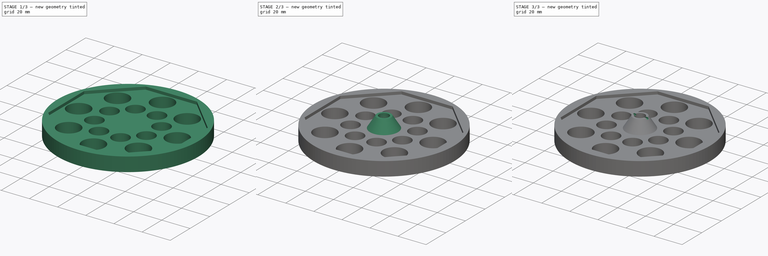
[diagram: build sequence overview — one tinted view per stage of 3, left to right]
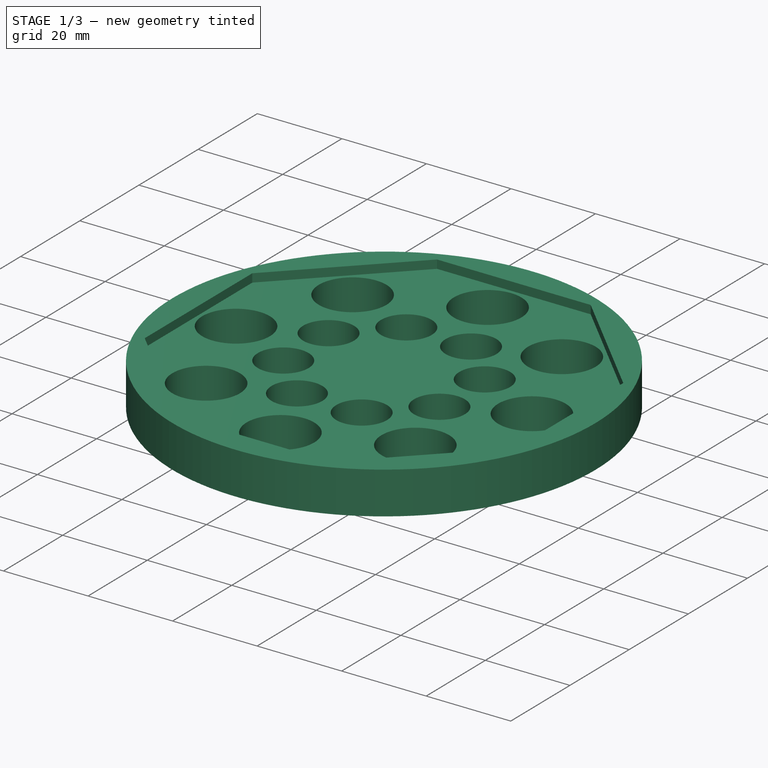
[diagram: stage 1 of 3 — iso view after this stage's code; geometry added in this stage tinted green]
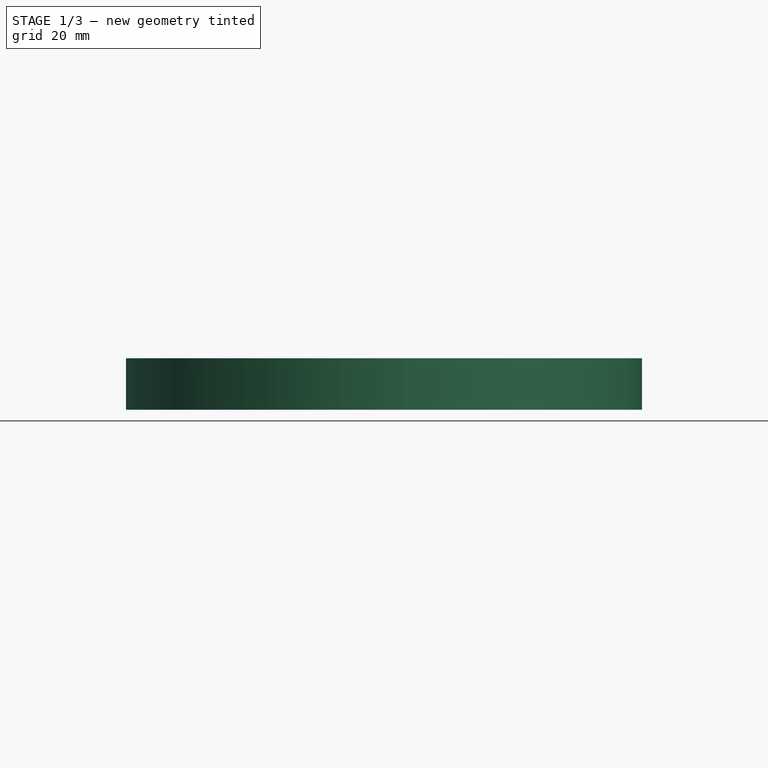
[diagram: stage 1 of 3 — front view after this stage's code; geometry added in this stage tinted green]
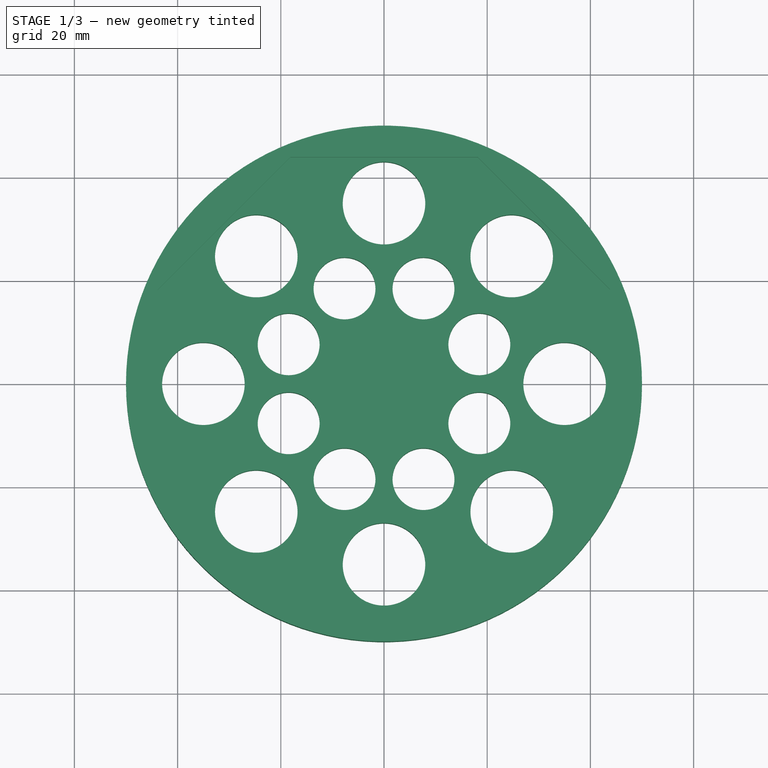
[diagram: stage 1 of 3 — top view after this stage's code; geometry added in this stage tinted green]
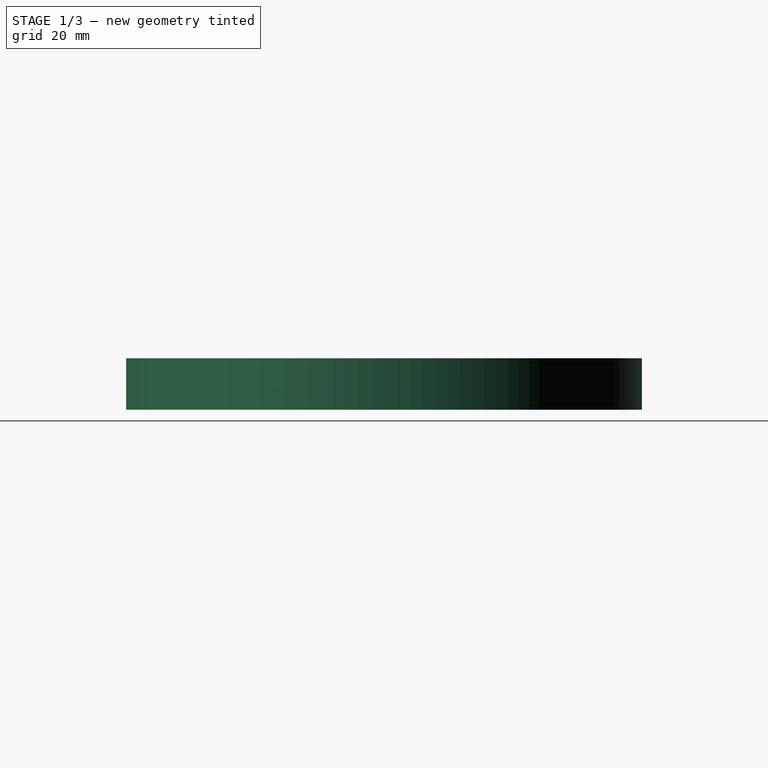
[diagram: stage 1 of 3 — right view after this stage's code; geometry added in this stage tinted green]
FCSTD DOCUMENT  (FreeCAD 0.19R24366 (Git))
Label: arkTach_v1_4
License: All rights reserved
LicenseURL: http://en.wikipedia.org/wiki/All_rights_reserved
objects: Sketcher::SketchObject×3, PartDesign::Pocket×2, PartDesign::Pad×1, PartDesign::AdditiveCone×1, PartDesign::SubtractiveCylinder×1, PartDesign::SubtractiveBox×1, PartDesign::Body×1, Part::Part2DObjectPython×1
note: 17 computed .brp shape members not serialized (recipe doc carries the construction recipe); baked Part::Feature solids carry a one-line shape summary decoded from their .brp

FEATURE [Sketcher::SketchObject] Sketch
  FullyConstrained = true
  MapMode = 5
  Support = -> [XY_Plane]
  sketch-geometry (35):
    g0: Circle CenterX=0 CenterY=0 CenterZ=0 NormalX=0 NormalY=0 NormalZ=1 AngleXU=0 Radius=50
    g1: LineSegment StartX=35 StartY=0 StartZ=0 EndX=24.7487 EndY=24.7487 EndZ=0
    g2: LineSegment StartX=24.7487 StartY=24.7487 StartZ=0 EndX=0 EndY=35 EndZ=0
    g3: LineSegment StartX=0 StartY=35 StartZ=0 EndX=-24.7487 EndY=24.7487 EndZ=0
    g4: LineSegment StartX=-24.7487 StartY=24.7487 StartZ=0 EndX=-35 EndY=0 EndZ=0
    g5: LineSegment StartX=-35 StartY=0 StartZ=0 EndX=-24.7487 EndY=-24.7487 EndZ=0
    g6: LineSegment StartX=-24.7487 StartY=-24.7487 StartZ=0 EndX=3.6e-15 EndY=-35 EndZ=0
    g7: LineSegment StartX=3.6e-15 StartY=-35 StartZ=0 EndX=24.7487 EndY=-24.7487 EndZ=0
    g8: LineSegment StartX=24.7487 StartY=-24.7487 StartZ=0 EndX=35 EndY=0 EndZ=0
    g9: Circle CenterX=0 CenterY=0 CenterZ=0 NormalX=0 NormalY=0 NormalZ=1 AngleXU=0 Radius=35
    g10: Circle CenterX=0 CenterY=35 CenterZ=0 NormalX=0 NormalY=0 NormalZ=1 AngleXU=0 Radius=8
    g11: Circle CenterX=24.7487 CenterY=24.7487 CenterZ=0 NormalX=0 NormalY=0 NormalZ=1 AngleXU=0 Radius=8
    g12: Circle CenterX=35 CenterY=0 CenterZ=0 NormalX=0 NormalY=0 NormalZ=1 AngleXU=0 Radius=8
    g13: Circle CenterX=24.7487 CenterY=-24.7487 CenterZ=0 NormalX=0 NormalY=0 NormalZ=1 AngleXU=0 Radius=8
    g14: Circle CenterX=3.6e-15 CenterY=-35 CenterZ=0 NormalX=0 NormalY=0 NormalZ=1 AngleXU=0 Radius=8
    g15: Circle CenterX=-24.7487 CenterY=-24.7487 CenterZ=0 NormalX=0 NormalY=0 NormalZ=1 AngleXU=0 Radius=8
    g16: Circle CenterX=-35 CenterY=0 CenterZ=0 NormalX=0 NormalY=0 NormalZ=1 AngleXU=0 Radius=8
    g17: Circle CenterX=-24.7487 CenterY=24.7487 CenterZ=0 NormalX=0 NormalY=0 NormalZ=1 AngleXU=0 Radius=8
    g18: LineSegment StartX=7.65367 StartY=-18.4776 StartZ=0 EndX=18.4776 EndY=-7.65367 EndZ=0
    g19: LineSegment StartX=18.4776 StartY=-7.65367 StartZ=0 EndX=18.4776 EndY=7.65367 EndZ=0
    g20: LineSegment StartX=18.4776 StartY=7.65367 StartZ=0 EndX=7.65367 EndY=18.4776 EndZ=0
    g21: LineSegment StartX=7.65367 StartY=18.4776 StartZ=0 EndX=-7.65367 EndY=18.4776 EndZ=0
    g22: LineSegment StartX=-7.65367 StartY=18.4776 StartZ=0 EndX=-18.4776 EndY=7.65367 EndZ=0
    g23: LineSegment StartX=-18.4776 StartY=7.65367 StartZ=0 EndX=-18.4776 EndY=-7.65367 EndZ=0
    g24: LineSegment StartX=-18.4776 StartY=-7.65367 StartZ=0 EndX=-7.65367 EndY=-18.4776 EndZ=0
    g25: LineSegment StartX=-7.65367 StartY=-18.4776 StartZ=0 EndX=7.65367 EndY=-18.4776 EndZ=0
    g26: Circle CenterX=0 CenterY=0 CenterZ=0 NormalX=0 NormalY=0 NormalZ=1 AngleXU=0 Radius=20
    g27: Circle CenterX=-7.65367 CenterY=-18.4776 CenterZ=0 NormalX=0 NormalY=0 NormalZ=1 AngleXU=0 Radius=6
    g28: Circle CenterX=7.65367 CenterY=-18.4776 CenterZ=0 NormalX=0 NormalY=0 NormalZ=1 AngleXU=0 Radius=6
    g29: Circle CenterX=18.4776 CenterY=-7.65367 CenterZ=0 NormalX=0 NormalY=0 NormalZ=1 AngleXU=0 Radius=6
    g30: Circle CenterX=18.4776 CenterY=7.65367 CenterZ=0 NormalX=0 NormalY=0 NormalZ=1 AngleXU=0 Radius=6
    g31: Circle CenterX=7.65367 CenterY=18.4776 CenterZ=0 NormalX=0 NormalY=0 NormalZ=1 AngleXU=0 Radius=6
    g32: Circle CenterX=-7.65367 CenterY=18.4776 CenterZ=0 NormalX=0 NormalY=0 NormalZ=1 AngleXU=0 Radius=6
    g33: Circle CenterX=-18.4776 CenterY=7.65367 CenterZ=0 NormalX=0 NormalY=0 NormalZ=1 AngleXU=0 Radius=6
    g34: Circle CenterX=-18.4776 CenterY=-7.65367 CenterZ=0 NormalX=0 NormalY=0 NormalZ=1 AngleXU=0 Radius=6
  constraints (66):
    c: Coincident(g0,g-1)
    c: Radius(g0) = 50
    c: Coincident(g1,g2)
    c: Coincident(g2,g3)
    c: Coincident(g3,g4)
    c: Coincident(g4,g5)
    c: Coincident(g5,g6)
    c: Coincident(g6,g7)
    c: Coincident(g7,g8)
    c: Coincident(g8,g1)
    c: Equal(g1, g2-g8) x7
    c: PointOnObject(g1,g9)
    c: PointOnObject(g2,g9)
    c: PointOnObject(g3,g9)
    c: PointOnObject(g4,g9)
    c: PointOnObject(g5,g9)
    c: PointOnObject(g6,g9)
    c: PointOnObject(g7,g9)
    c: PointOnObject(g8,g9)
    c: Coincident(g9,g0)
    c: PointOnObject(g8,g-1)
    c: Radius(g9) = 35
    c: Coincident(g10,g2)
    c: Radius(g10) = 8
    c: Coincident(g11,g1)
    c: Coincident(g12,g1)
    c: Coincident(g13,g7)
    c: Coincident(g14,g6)
    c: Coincident(g15,g5)
    c: Coincident(g16,g4)
    c: Coincident(g17,g3)
    c: Equal(g10, g11-g14) x4
    c: Equal(g15,g10)
    c: Equal(g16,g10)
    c: Equal(g10,g17)
    c: Coincident(g18,g19)
    c: Coincident(g19,g20)
    c: Coincident(g20,g21)
    c: Coincident(g21,g22)
    c: Coincident(g22,g23)
    c: Coincident(g23,g24)
    c: Coincident(g24,g25)
    c: Coincident(g25,g18)
    c: Equal(g18, g19-g25) x7
    c: PointOnObject(g18,g26)
    c: PointOnObject(g19,g26)
    c: PointOnObject(g20,g26)
    c: PointOnObject(g21,g26)
    c: PointOnObject(g22,g26)
    c: PointOnObject(g23,g26)
    c: PointOnObject(g24,g26)
    c: PointOnObject(g25,g26)
    c: Coincident(g26,g0)
    c: Parallel(g-1,g25)
    c: Radius(g26) = 20
    c: Coincident(g27,g24)
    c: Coincident(g28,g18)
    c: Coincident(g29,g18)
    c: Coincident(g30,g19)
    c: Coincident(g31,g20)
    c: Coincident(g32,g21)
    c: Coincident(g33,g22)
    c: Coincident(g34,g23)
    c: Radius(g33) = 6
    c: Equal(g33,g34)
    c: Equal(g33, g27-g32) x6
FEATURE [PartDesign::Pad] Pad
  Direction = (1,1,1)
  Length = 10
  Length2 = 100
  Profile = -> Sketch
  Type = 0
FEATURE [Sketcher::SketchObject] Sketch001
  FullyConstrained = true
  MapMode = 5
  Placement = pos=(0,0,10) rot=(0,0,1;0rad)
  Support = -> [Pad]
  sketch-geometry (9):
    g0: LineSegment StartX=43.8843 StartY=18.1775 StartZ=0 EndX=18.1775 EndY=43.8843 EndZ=0
    g1: LineSegment StartX=18.1775 StartY=43.8843 StartZ=0 EndX=-18.1775 EndY=43.8843 EndZ=0
    g2: LineSegment StartX=-18.1775 StartY=43.8843 StartZ=0 EndX=-43.8843 EndY=18.1775 EndZ=0
    g3: LineSegment StartX=-43.8843 StartY=18.1775 StartZ=0 EndX=-43.8843 EndY=-18.1775 EndZ=0
    g4: LineSegment StartX=-43.8843 StartY=-18.1775 StartZ=0 EndX=-18.1775 EndY=-43.8843 EndZ=0
    g5: LineSegment StartX=-18.1775 StartY=-43.8843 StartZ=0 EndX=18.1775 EndY=-43.8843 EndZ=0
    g6: LineSegment StartX=18.1775 StartY=-43.8843 StartZ=0 EndX=43.8843 EndY=-18.1775 EndZ=0
    g7: LineSegment StartX=43.8843 StartY=-18.1775 StartZ=0 EndX=43.8843 EndY=18.1775 EndZ=0
    g8: Circle CenterX=0 CenterY=0 CenterZ=0 NormalX=0 NormalY=0 NormalZ=1 AngleXU=0 Radius=47.5
  constraints (20):
    c: Coincident(g0,g1)
    c: Coincident(g1,g2)
    c: Coincident(g2,g3)
    c: Coincident(g3,g4)
    c: Coincident(g4,g5)
    c: Coincident(g5,g6)
    c: Coincident(g6,g7)
    c: Coincident(g7,g0)
    c: Equal(g0, g1-g7) x7
    c: PointOnObject(g0,g8)
    c: PointOnObject(g1,g8)
    c: PointOnObject(g2,g8)
    c: PointOnObject(g3,g8)
    c: PointOnObject(g4,g8)
    c: PointOnObject(g5,g8)
    c: PointOnObject(g6,g8)
    c: PointOnObject(g7,g8)
    c: Coincident(g8,g-1)
    c: Radius(g8) = 47.5
    c: Parallel(g7,g-2)
FEATURE [PartDesign::Pocket] Pocket
  BaseFeature = -> Pad
  Length = 2
  Length2 = 100
  Profile = -> Sketch001
  Type = 0
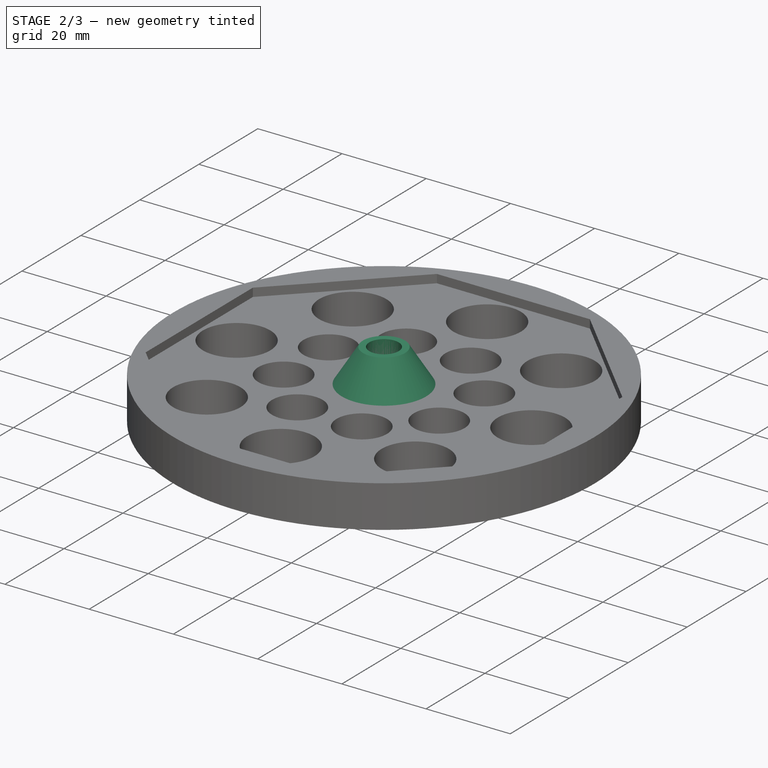
[diagram: stage 2 of 3 — iso view after this stage's code; geometry added in this stage tinted green]
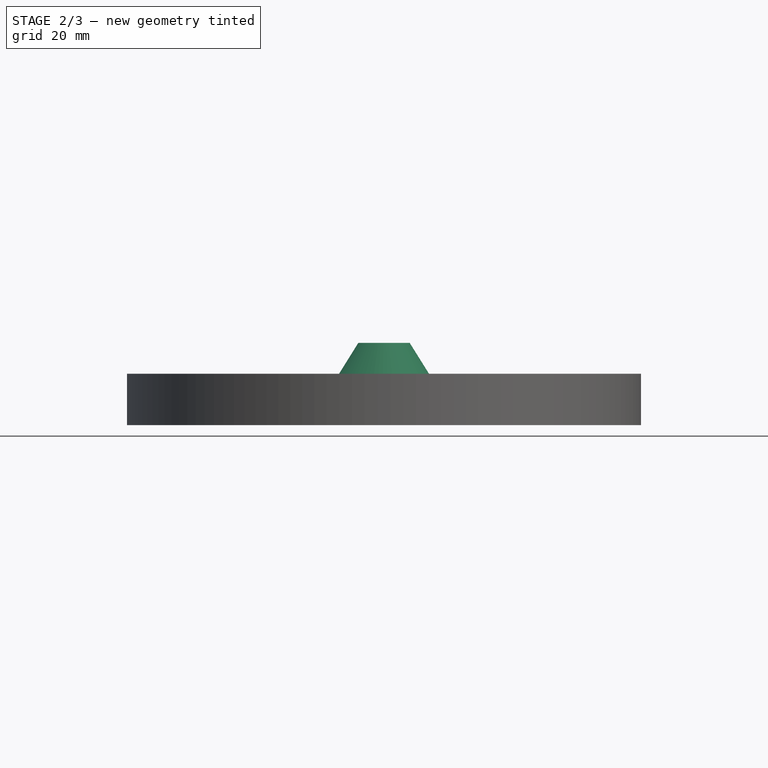
[diagram: stage 2 of 3 — front view after this stage's code; geometry added in this stage tinted green]
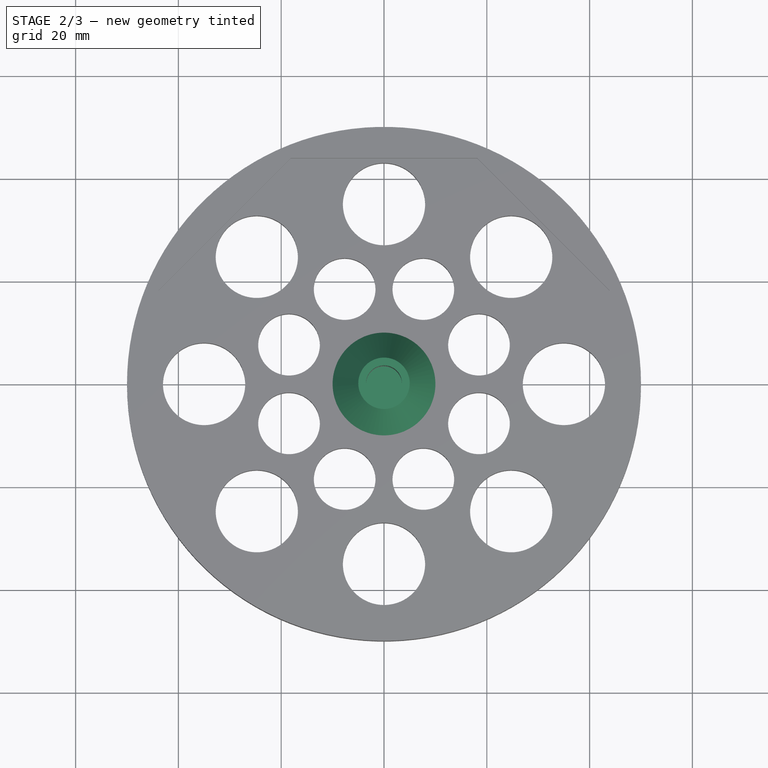
[diagram: stage 2 of 3 — top view after this stage's code; geometry added in this stage tinted green]
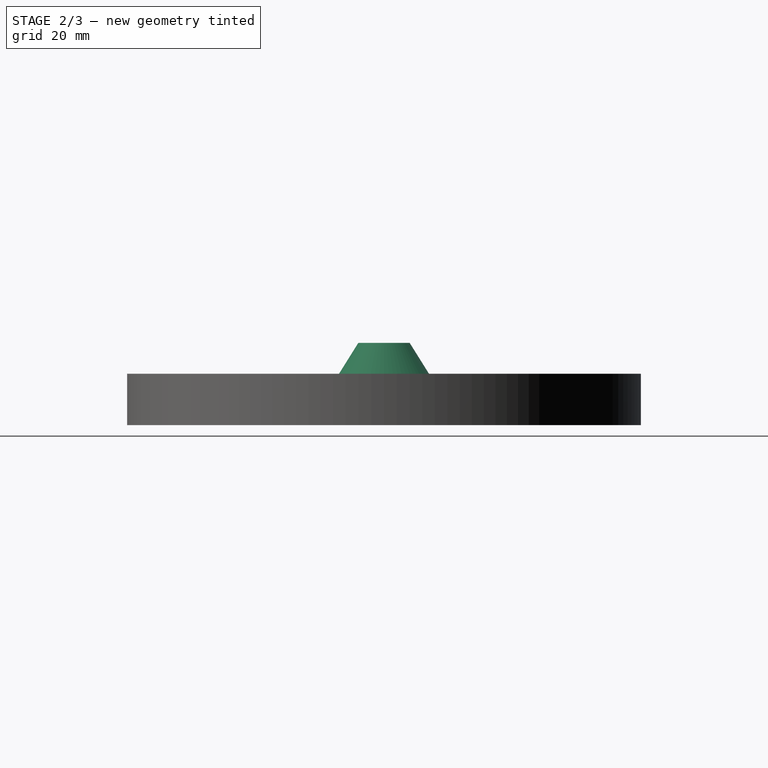
[diagram: stage 2 of 3 — right view after this stage's code; geometry added in this stage tinted green]
FEATURE [PartDesign::AdditiveCone] Cone
  Angle = 360
  AttacherType = Attacher::AttachEngine3D
  BaseFeature = -> Pocket
  Height = 8
  MapMode = 5
  Placement = pos=(0,0,8) rot=(0,0,1;0rad)
  Radius1 = 10
  Radius2 = 5
  Support = -> [Pocket]
FEATURE [PartDesign::SubtractiveCylinder] Cylinder
  Angle = 360
  AttacherType = Attacher::AttachEngine3D
  BaseFeature = -> Cone
  Height = 12
  MapMode = 5
  Placement = pos=(0,0,16) rot=(0,1,0;3.14159rad)
  Radius = 3.5
  Support = -> [Cone]
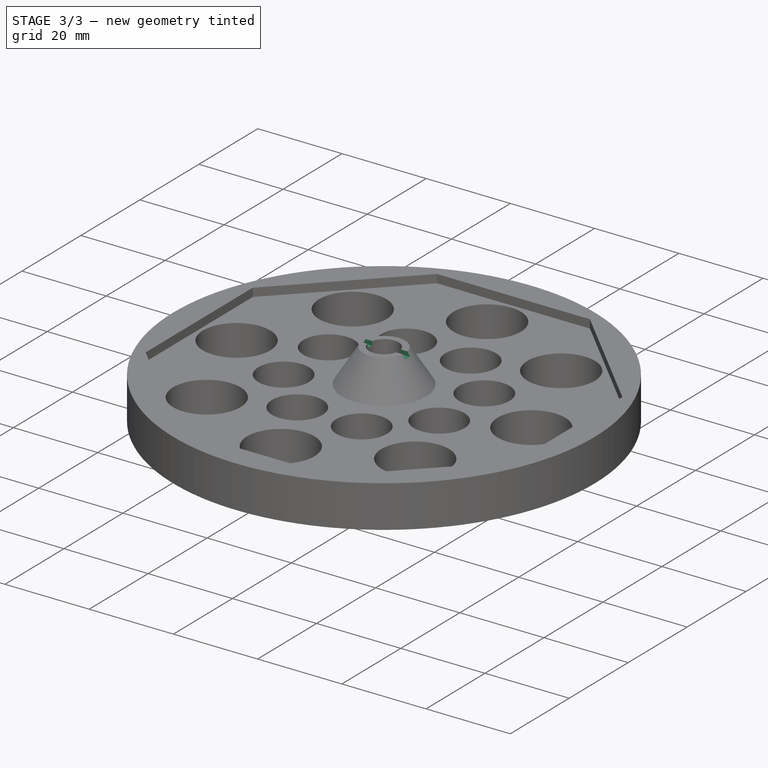
[diagram: stage 3 of 3 — iso view after this stage's code; geometry added in this stage tinted green]
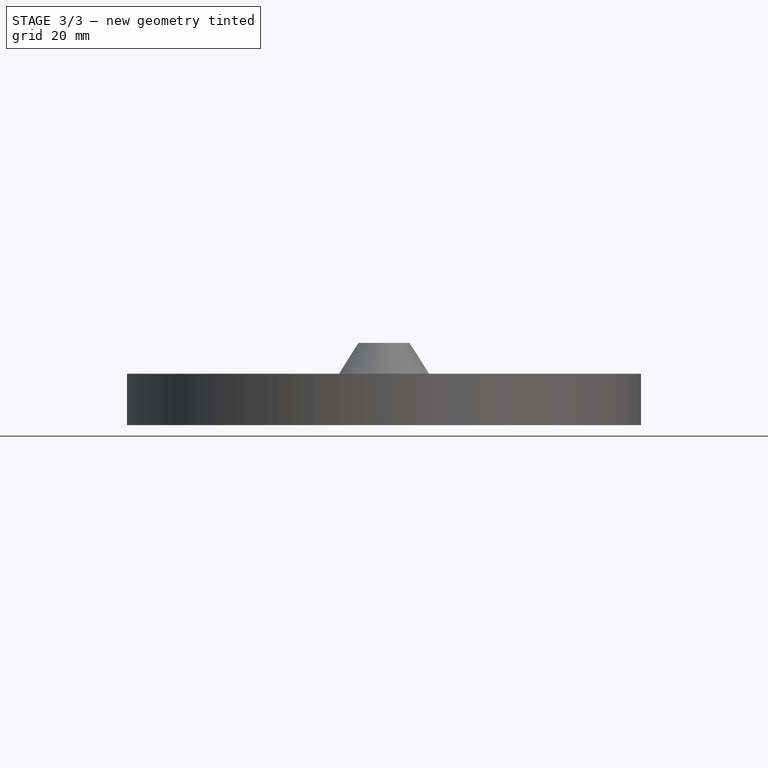
[diagram: stage 3 of 3 — front view after this stage's code; geometry added in this stage tinted green]
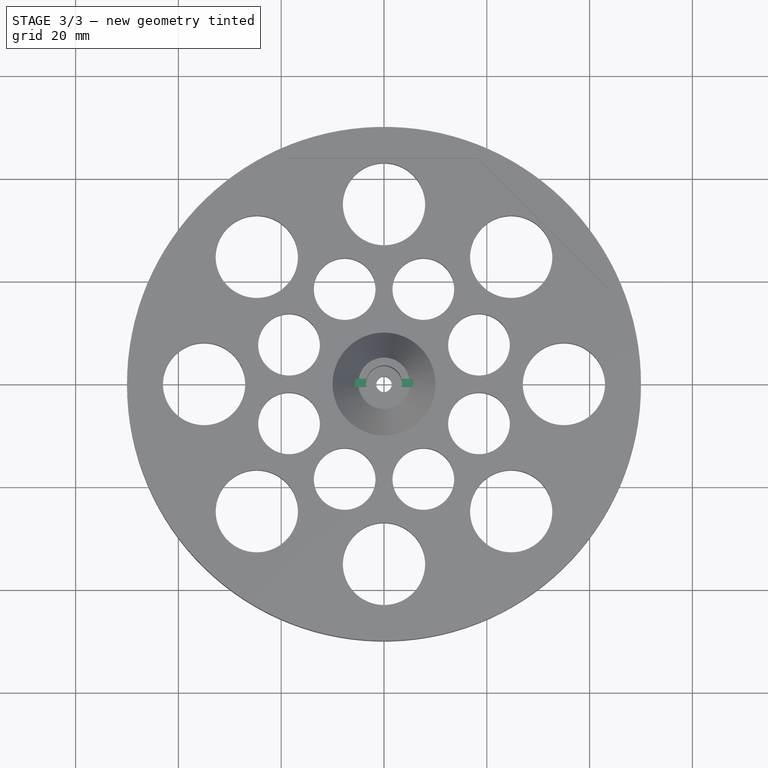
[diagram: stage 3 of 3 — top view after this stage's code; geometry added in this stage tinted green]
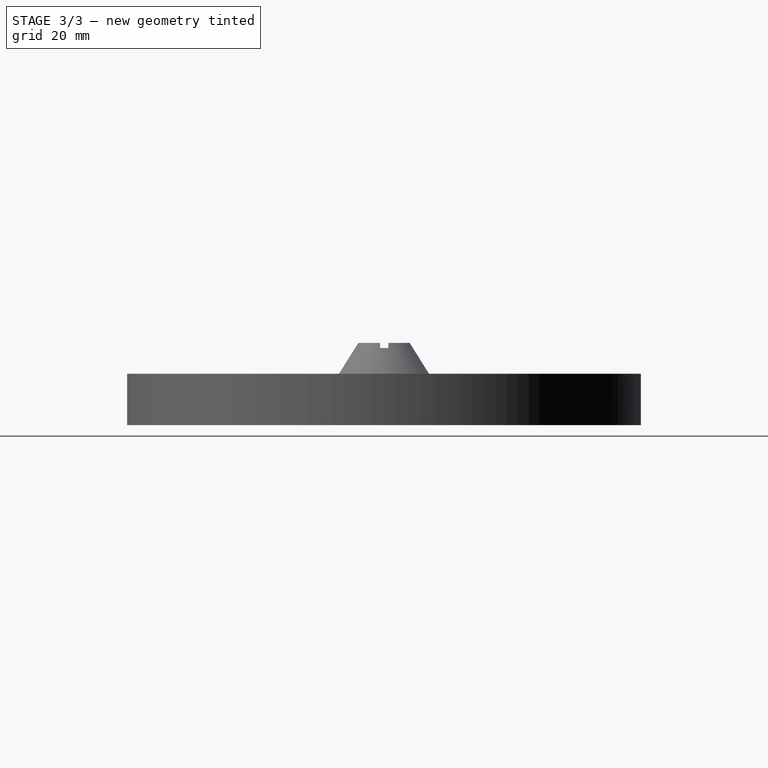
[diagram: stage 3 of 3 — right view after this stage's code; geometry added in this stage tinted green]
FEATURE [Sketcher::SketchObject] Sketch002
  FullyConstrained = true
  MapMode = 5
  Placement = pos=(0,0,4) rot=(0,0,1;3.14159rad)
  Support = -> [Cylinder]
  sketch-geometry (1):
    g0: Circle CenterX=0 CenterY=0 CenterZ=0 NormalX=0 NormalY=0 NormalZ=1 AngleXU=0 Radius=1.5
  constraints (2):
    c: Coincident(g0,g-1)
    c: Radius(g0) = 1.5
FEATURE [PartDesign::Pocket] Pocket001
  BaseFeature = -> Cylinder
  Length = 10
  Length2 = 100
  Placement = pos=(0,0,16) rot=(0,1,0;3.14159rad)
  Profile = -> Sketch002
  Type = 0
FEATURE [PartDesign::SubtractiveBox] Box
  AttacherType = Attacher::AttachEngine3D
  AttachmentOffset = pos=(-7,-0.75,15) rot=(0,0,1;0rad)
  BaseFeature = -> Pocket001
  Height = 4
  Length = 15
  MapMode = 2
  Placement = pos=(-7,-0.75,15) rot=(0,0,1;0rad)
  Support = -> [X_Axis]
  Width = 1.6
FEATURE [PartDesign::Body] Body
  Group = -> [Sketch,Pad,Sketch001,Pocket,Cone,Cylinder,Sketch002,Pocket001,Box]
  Origin = -> Origin
  Tip = -> Box
FEATURE [Part::Part2DObjectPython] ShapeString  # Draft 2D object (typed FeaturePython)
  Placement = pos=(-33.22,-14.76,0) rot=(0,0,1;0rad)
  Size = 10
  String = arkLabs
  Tracking = 0
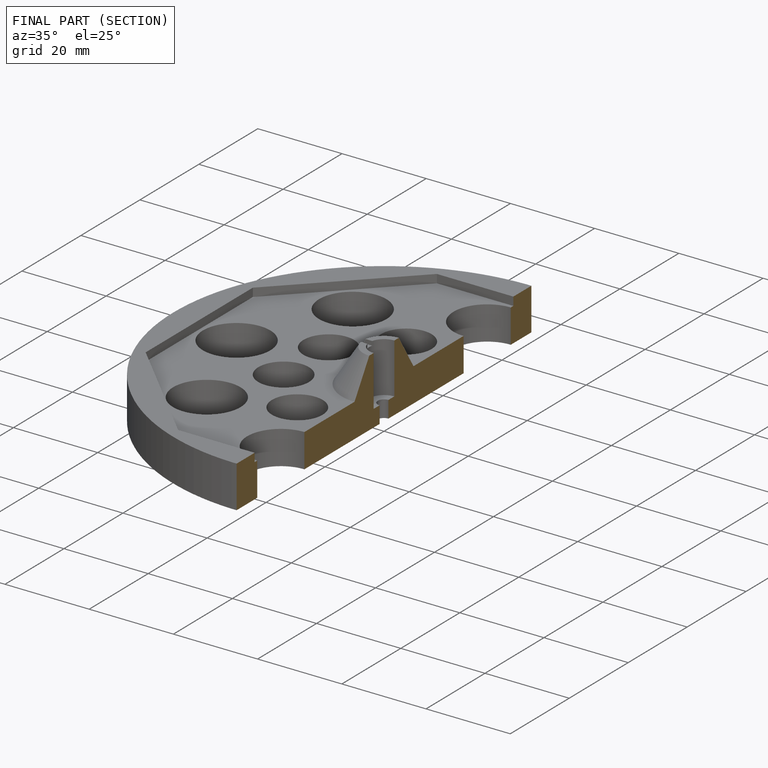
[diagram: finished part — half-section view (interior)]
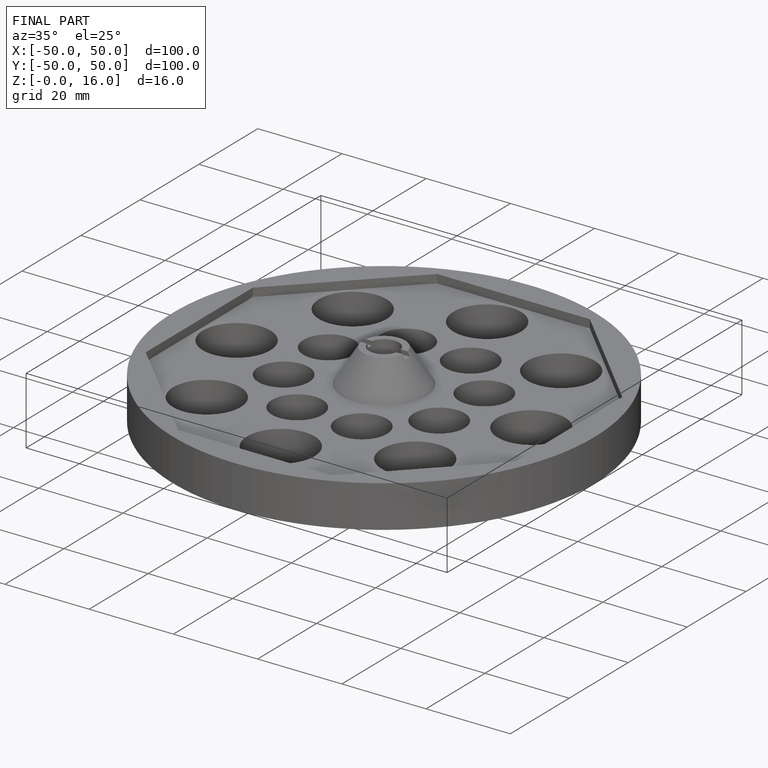
[diagram: finished part — iso view with bounding-box wireframe]
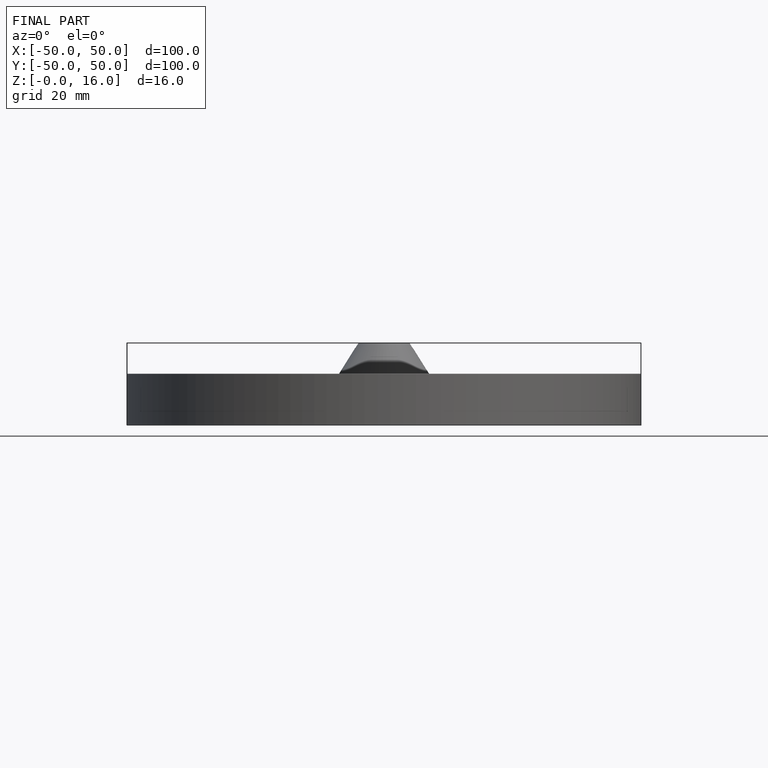
[diagram: finished part — front view with bounding-box wireframe]
